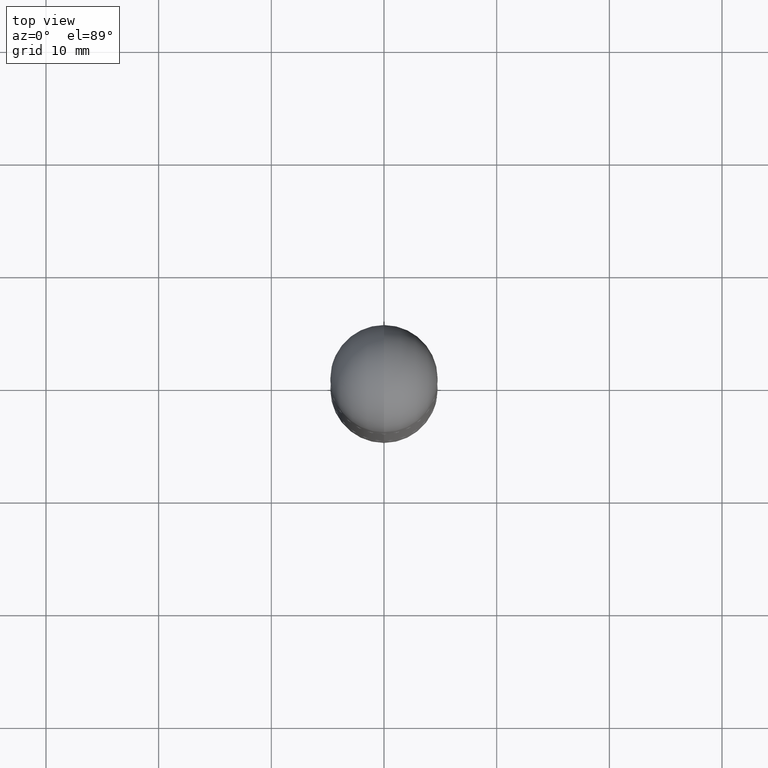
[diagram: clean part render]
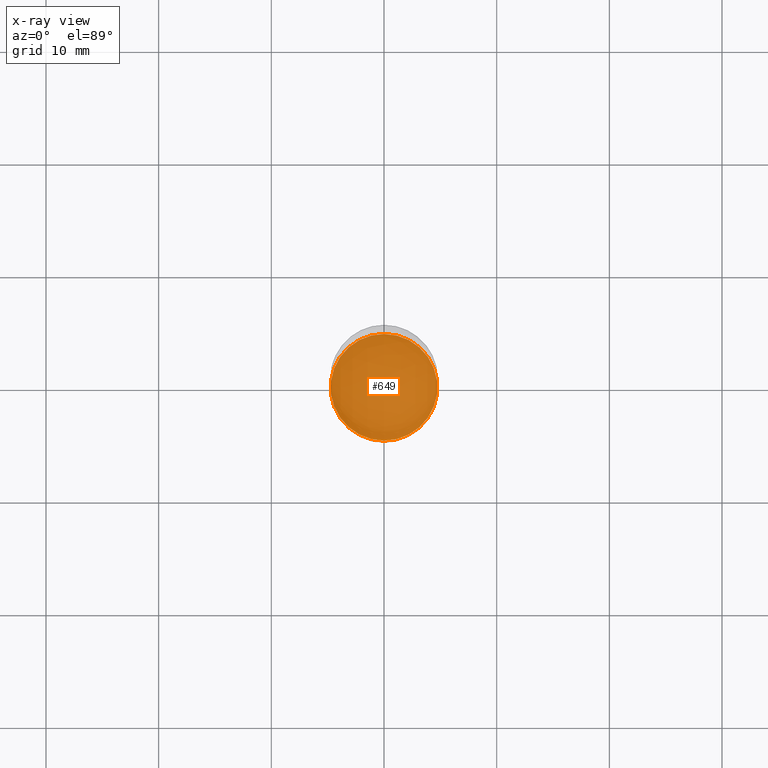
[diagram: x-ray — body ghosted, one internal face saturated and labeled with its STEP entity id]
A machine part, top view, then the same camera in x-ray: the body is ghosted and one INTERNAL B-rep face — a face not visible from any outside direction — is saturated and labeled: STEP entity #649.
In plain terms, the highlighted planar face has unit normal (-0, 0, 1).
Its self-contained STEP definition (entity closure, byte-faithful):
#9 = EDGE_CURVE ( 'NONE', #522, #232, #355, .T. ) ;
#11 = CARTESIAN_POINT ( 'NONE',  ( 4.738763353885146928E-29, -6.767285901939970201E-15, -1.937999999999999945 ) ) ;
#18 = CARTESIAN_POINT ( 'NONE',  ( 4.738763353885146928E-29, -6.767285901939970201E-15, -1.937999999999999945 ) ) ;
#20 = DIRECTION ( 'NONE',  ( -2.445182329146102115E-29, 3.491891590268302774E-15, 1.000000000000000000 ) ) ;
#93 = PLANE ( 'NONE',  #461 ) ;
#150 = DIRECTION ( 'NONE',  ( -2.445182329146102675E-29, 3.491891590268302774E-15, 1.000000000000000000 ) ) ;
#224 = CARTESIAN_POINT ( 'NONE',  ( -1.302322539388441071E-15, -0.1865000000000067437, -1.937999999999999279 ) ) ;
#232 = VERTEX_POINT ( 'NONE', #799 ) ;
#270 = DIRECTION ( 'NONE',  ( -6.982962677686265922E-15, -1.000000000000000000, 2.929595703661408850E-15 ) ) ;
#313 = AXIS2_PLACEMENT_3D ( 'NONE', #11, #526, #386 ) ;
#327 = AXIS2_PLACEMENT_3D ( 'NONE', #18, #150, #270 ) ;
#355 = CIRCLE ( 'NONE', #327, 0.1864999999999999714 ) ;
#386 = DIRECTION ( 'NONE',  ( -6.982962677686265922E-15, -1.000000000000000000, 2.929595703661408850E-15 ) ) ;
#428 = EDGE_CURVE ( 'NONE', #232, #522, #524, .T. ) ;
#461 = AXIS2_PLACEMENT_3D ( 'NONE', #704, #20, #466 ) ;
#466 = DIRECTION ( 'NONE',  ( -6.982962677686265922E-15, -1.000000000000000000, 3.491891590268302774E-15 ) ) ;
#501 = EDGE_LOOP ( 'NONE', ( #621, #660 ) ) ;
#522 = VERTEX_POINT ( 'NONE', #224 ) ;
#524 = CIRCLE ( 'NONE', #313, 0.1864999999999999714 ) ;
#526 = DIRECTION ( 'NONE',  ( -2.445182329146102675E-29, 3.491891590268302774E-15, 1.000000000000000000 ) ) ;
#621 = ORIENTED_EDGE ( 'NONE', *, *, #9, .F. ) ;
#645 = FACE_OUTER_BOUND ( 'NONE', #501, .T. ) ;
#649 = ADVANCED_FACE ( 'NONE', ( #645 ), #93, .F. ) ;
#660 = ORIENTED_EDGE ( 'NONE', *, *, #428, .F. ) ;
#704 = CARTESIAN_POINT ( 'NONE',  ( 4.738763353885146928E-29, -6.767285901939970201E-15, -1.937999999999999945 ) ) ;
#799 = CARTESIAN_POINT ( 'NONE',  ( 1.328714915871435071E-15, 0.1864999999999932268, -1.938000000000000389 ) ) ;